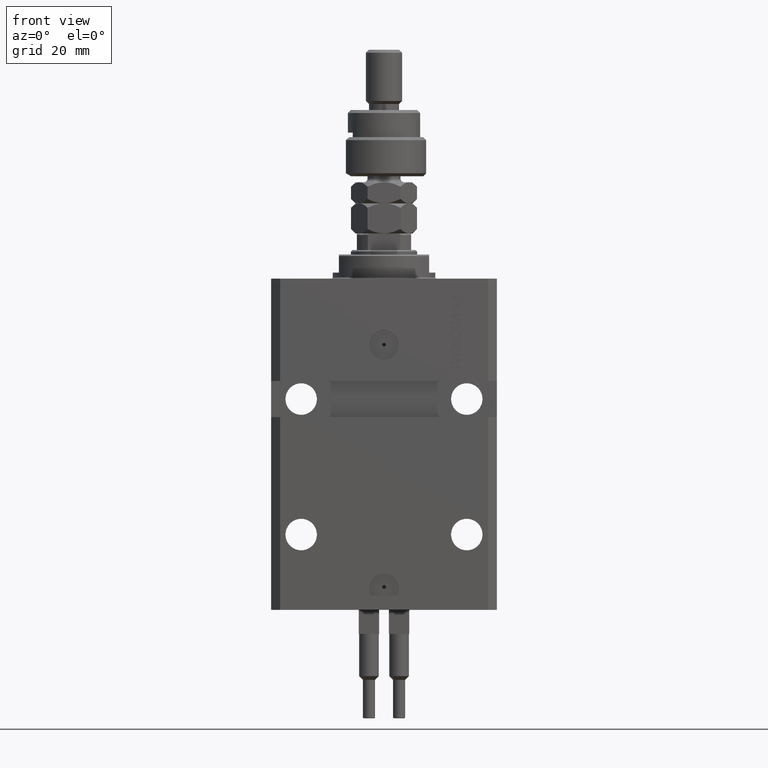
[diagram: clean part render]
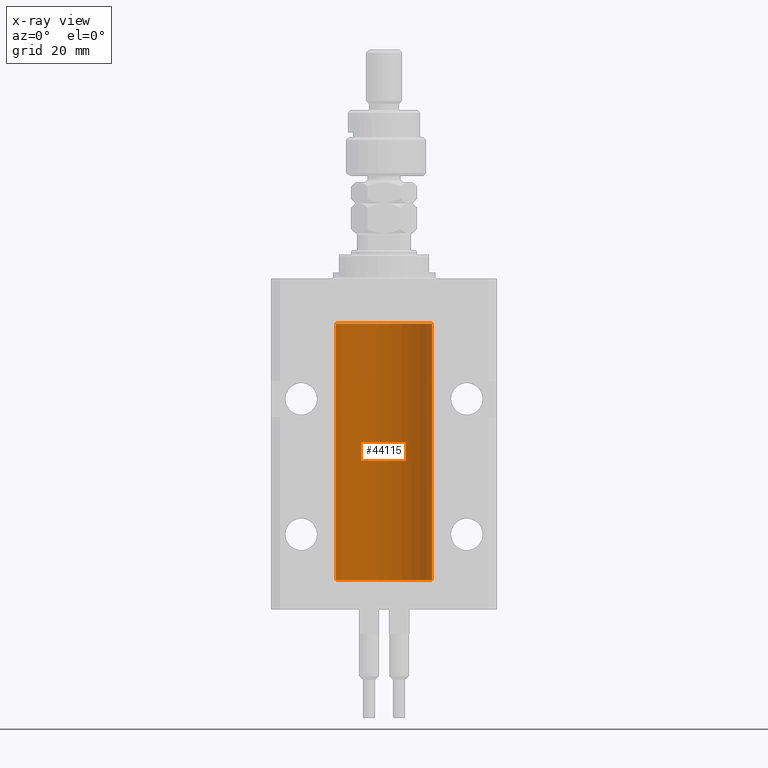
[diagram: x-ray — body ghosted, one internal face saturated and labeled with its STEP entity id]
A machine part, front view, then the same camera in x-ray: the body is ghosted and one INTERNAL B-rep face — a face not visible from any outside direction — is saturated and labeled: STEP entity #44115.
In plain terms, the highlighted cylindrical surface (partial cylindrical patch) has radius 16 mm, axis along (0, 0, 1).
Its self-contained STEP definition (entity closure, byte-faithful):
#81 = B_SPLINE_CURVE_WITH_KNOTS ( 'NONE', 3,
 ( #37115, #1775, #48970, #45117, #30930, #50250, #22911, #26788, #42533, #39151, #31423, #3820, #27543, #35296 ),
 .UNSPECIFIED., .F., .F.,
 ( 4, 2, 2, 2, 2, 2, 4 ),
 ( 1.597328219370744179E-19, 0.0002442776652680942405, 0.0004885553305361882643, 0.0009771106610723839011, 0.001221388326340481665, 0.001465665991608579430, 0.001954221322144767369 ),
 .UNSPECIFIED. ) ;
#579 = CARTESIAN_POINT ( 'NONE',  ( -15.99548640841682712, 0.3843705577988784650, -97.50046628527007897 ) ) ;
#826 = CARTESIAN_POINT ( 'NONE',  ( -15.99707730059171240, 0.3150375992092294686, -97.45402333202572720 ) ) ;
#886 = CARTESIAN_POINT ( 'NONE',  ( -16.00000000000000000, 1.959434878635765131E-15, -15.00000000000000000 ) ) ;
#1055 = CARTESIAN_POINT ( 'NONE',  ( 16.00000000000000000, 0.000000000000000000, -100.0999999999999943 ) ) ;
#1112 = VERTEX_POINT ( 'NONE', #43770 ) ;
#1196 = EDGE_CURVE ( 'NONE', #3980, #25143, #28558, .T. ) ;
#1648 = DIRECTION ( 'NONE',  ( 0.000000000000000000, 0.000000000000000000, 1.000000000000000000 ) ) ;
#1775 = CARTESIAN_POINT ( 'NONE',  ( -16.00000000000000711, 0.08259886010189904093, -21.37500000000000000 ) ) ;
#3820 = CARTESIAN_POINT ( 'NONE',  ( -15.99711699979842017, 0.3253759916140657737, -22.55856151623175521 ) ) ;
#3980 = VERTEX_POINT ( 'NONE', #6659 ) ;
#5167 = DIRECTION ( 'NONE',  ( 1.000000000000000000, 0.000000000000000000, 0.000000000000000000 ) ) ;
#5452 = LINE ( 'NONE', #29189, #42501 ) ;
#6206 = DIRECTION ( 'NONE',  ( -0.000000000000000000, -0.000000000000000000, 1.000000000000000000 ) ) ;
#6388 = VECTOR ( 'NONE', #12994, 1000.000000000000000 ) ;
#6659 = CARTESIAN_POINT ( 'NONE',  ( -16.00000000000000000, -1.303459030566954747E-14, -97.37500000000000000 ) ) ;
#8052 = EDGE_CURVE ( 'NONE', #1112, #18874, #37614, .T. ) ;
#8299 = CARTESIAN_POINT ( 'NONE',  ( -15.98779057735153941, 0.6249419637998017141, -97.83670145863504786 ) ) ;
#8808 = CARTESIAN_POINT ( 'NONE',  ( -15.98778717651346604, 0.6250289588122097673, -98.08131585687051768 ) ) ;
#10334 = LINE ( 'NONE', #49528, #15226 ) ;
#11420 = VERTEX_POINT ( 'NONE', #1055 ) ;
#12181 = CARTESIAN_POINT ( 'NONE',  ( -15.98844267028590949, 0.6088369347963275002, -98.16324735024325321 ) ) ;
#12921 = CARTESIAN_POINT ( 'NONE',  ( 0.000000000000000000, 0.000000000000000000, -100.0999999999999943 ) ) ;
#12994 = DIRECTION ( 'NONE',  ( -0.000000000000000000, -0.000000000000000000, 1.000000000000000000 ) ) ;
#14843 = CARTESIAN_POINT ( 'NONE',  ( -16.00000000000000000, 1.643679961284177128E-16, -21.37499999999999645 ) ) ;
#15226 = VECTOR ( 'NONE', #6206, 1000.000000000000000 ) ;
#15390 = AXIS2_PLACEMENT_3D ( 'NONE', #28005, #20760, #36503 ) ;
#15743 = B_SPLINE_CURVE_WITH_KNOTS ( 'NONE', 3,
 ( #24281, #35914, #16810, #826, #579, #32565, #8299, #8808, #12181, #47756, #43153, #36158, #20670, #24545 ),
 .UNSPECIFIED., .F., .F.,
 ( 4, 2, 2, 2, 2, 2, 4 ),
 ( 1.003919637555167698E-18, 0.0002442776652680894158, 0.0004885553305361776391, 0.0009771106610723541940, 0.001221388326340463017, 0.001465665991608572274, 0.001954221322144760863 ),
 .UNSPECIFIED. ) ;
#15989 = EDGE_CURVE ( 'NONE', #3980, #24430, #15743, .T. ) ;
#16265 = CYLINDRICAL_SURFACE ( 'NONE', #50375, 16.00000000000000000 ) ;
#16810 = CARTESIAN_POINT ( 'NONE',  ( -15.99934216141748244, 0.1636497843296308152, -97.39126528029306940 ) ) ;
#17383 = DIRECTION ( 'NONE',  ( 1.000000000000000000, 0.000000000000000000, 0.000000000000000000 ) ) ;
#18015 = EDGE_CURVE ( 'NONE', #11420, #19257, #42102, .T. ) ;
#18411 = ORIENTED_EDGE ( 'NONE', *, *, #37356, .F. ) ;
#18701 = ORIENTED_EDGE ( 'NONE', *, *, #50937, .T. ) ;
#18874 = VERTEX_POINT ( 'NONE', #886 ) ;
#18924 = CARTESIAN_POINT ( 'NONE',  ( -16.00000000000013145, 3.685127038166941002E-13, -22.62500000000341771 ) ) ;
#19257 = VERTEX_POINT ( 'NONE', #24801 ) ;
#20670 = CARTESIAN_POINT ( 'NONE',  ( -15.99999999999998934, 0.1631714642025804407, -98.62499999999987210 ) ) ;
#20760 = DIRECTION ( 'NONE',  ( 0.000000000000000000, 0.000000000000000000, 1.000000000000000000 ) ) ;
#20917 = DIRECTION ( 'NONE',  ( -0.000000000000000000, -0.000000000000000000, 1.000000000000000000 ) ) ;
#21248 = CARTESIAN_POINT ( 'NONE',  ( 0.000000000000000000, 0.000000000000000000, -100.0999999999999943 ) ) ;
#22619 = ORIENTED_EDGE ( 'NONE', *, *, #18015, .F. ) ;
#22911 = CARTESIAN_POINT ( 'NONE',  ( -15.98779057735153941, 0.6249419637998100407, -21.83670145863507273 ) ) ;
#24281 = CARTESIAN_POINT ( 'NONE',  ( -16.00000000000000000, -1.303459030566954747E-14, -97.37500000000000000 ) ) ;
#24430 = VERTEX_POINT ( 'NONE', #48662 ) ;
#24545 = CARTESIAN_POINT ( 'NONE',  ( -16.00000000000013145, 3.685127046438747128E-13, -98.62500000000343903 ) ) ;
#24801 = CARTESIAN_POINT ( 'NONE',  ( -16.00000000000000000, 1.959434878635765131E-15, -100.0999999999999943 ) ) ;
#25034 = DIRECTION ( 'NONE',  ( -0.000000000000000000, -0.000000000000000000, 1.000000000000000000 ) ) ;
#25143 = VERTEX_POINT ( 'NONE', #18924 ) ;
#25452 = DIRECTION ( 'NONE',  ( -0.000000000000000000, -0.000000000000000000, 1.000000000000000000 ) ) ;
#26788 = CARTESIAN_POINT ( 'NONE',  ( -15.98778717651346071, 0.6250289588122140971, -22.08131585687052478 ) ) ;
#27543 = CARTESIAN_POINT ( 'NONE',  ( -16.00000000000000000, 0.1631714642025800244, -22.62499999999985789 ) ) ;
#28005 = CARTESIAN_POINT ( 'NONE',  ( 0.000000000000000000, 0.000000000000000000, -15.00000000000000000 ) ) ;
#28558 = LINE ( 'NONE', #45308, #50651 ) ;
#29189 = CARTESIAN_POINT ( 'NONE',  ( -16.00000000000000000, 1.959434878635765131E-15, -100.0999999999999943 ) ) ;
#30686 = EDGE_CURVE ( 'NONE', #45719, #25143, #81, .T. ) ;
#30930 = CARTESIAN_POINT ( 'NONE',  ( -15.99548640841683067, 0.3843705577988847377, -21.50046628527008608 ) ) ;
#31423 = CARTESIAN_POINT ( 'NONE',  ( -15.99228023727724413, 0.5003781296993413674, -22.38347829554236057 ) ) ;
#32565 = CARTESIAN_POINT ( 'NONE',  ( -15.99070653155267685, 0.5573233280232928744, -97.67348148680505915 ) ) ;
#35296 = CARTESIAN_POINT ( 'NONE',  ( -16.00000000000013145, 3.685127038166941002E-13, -22.62500000000341771 ) ) ;
#35914 = CARTESIAN_POINT ( 'NONE',  ( -16.00000000000000711, 0.08259886010188650929, -97.37500000000000000 ) ) ;
#36158 = CARTESIAN_POINT ( 'NONE',  ( -15.99711699979841661, 0.3253759916140614439, -98.55856151623174810 ) ) ;
#36503 = DIRECTION ( 'NONE',  ( 1.000000000000000000, 0.000000000000000000, 0.000000000000000000 ) ) ;
#36819 = ORIENTED_EDGE ( 'NONE', *, *, #8052, .T. ) ;
#37115 = CARTESIAN_POINT ( 'NONE',  ( -16.00000000000000000, 1.643679961284177128E-16, -21.37499999999999645 ) ) ;
#37356 = EDGE_CURVE ( 'NONE', #19257, #24430, #5452, .T. ) ;
#37614 = CIRCLE ( 'NONE', #15390, 16.00000000000000000 ) ;
#38429 = ORIENTED_EDGE ( 'NONE', *, *, #42089, .F. ) ;
#39151 = CARTESIAN_POINT ( 'NONE',  ( -15.99070426498503217, 0.5462220647145618058, -22.31460064614143590 ) ) ;
#40305 = ORIENTED_EDGE ( 'NONE', *, *, #1196, .F. ) ;
#42089 = EDGE_CURVE ( 'NONE', #45719, #18874, #44979, .T. ) ;
#42102 = CIRCLE ( 'NONE', #43702, 16.00000000000000000 ) ;
#42501 = VECTOR ( 'NONE', #20917, 1000.000000000000000 ) ;
#42533 = CARTESIAN_POINT ( 'NONE',  ( -15.98844267028591482, 0.6088369347963316081, -22.16324735024328518 ) ) ;
#43153 = CARTESIAN_POINT ( 'NONE',  ( -15.99228023727724057, 0.5003781296993360383, -98.38347829554236057 ) ) ;
#43702 = AXIS2_PLACEMENT_3D ( 'NONE', #21248, #1648, #17383 ) ;
#43770 = CARTESIAN_POINT ( 'NONE',  ( 16.00000000000000000, 0.000000000000000000, -15.00000000000000000 ) ) ;
#44115 = ADVANCED_FACE ( 'NONE', ( #48236 ), #16265, .F. ) ;
#44979 = LINE ( 'NONE', #48318, #6388 ) ;
#45117 = CARTESIAN_POINT ( 'NONE',  ( -15.99707730059171240, 0.3150375992092407373, -21.45402333202571654 ) ) ;
#45308 = CARTESIAN_POINT ( 'NONE',  ( -16.00000000000000000, 1.959434878635765131E-15, -100.0999999999999943 ) ) ;
#45719 = VERTEX_POINT ( 'NONE', #14843 ) ;
#46538 = ORIENTED_EDGE ( 'NONE', *, *, #15989, .T. ) ;
#47756 = CARTESIAN_POINT ( 'NONE',  ( -15.99070426498503572, 0.5462220647145610286, -98.31460064614144301 ) ) ;
#47859 = ORIENTED_EDGE ( 'NONE', *, *, #30686, .T. ) ;
#48236 = FACE_OUTER_BOUND ( 'NONE', #49765, .T. ) ;
#48318 = CARTESIAN_POINT ( 'NONE',  ( -16.00000000000000000, 1.959434878635765131E-15, -100.0999999999999943 ) ) ;
#48662 = CARTESIAN_POINT ( 'NONE',  ( -16.00000000000013145, 3.685127046438747128E-13, -98.62500000000343903 ) ) ;
#48970 = CARTESIAN_POINT ( 'NONE',  ( -15.99934216141748244, 0.1636497843296417787, -21.39126528029306229 ) ) ;
#49528 = CARTESIAN_POINT ( 'NONE',  ( 16.00000000000000000, 0.000000000000000000, -100.0999999999999943 ) ) ;
#49765 = EDGE_LOOP ( 'NONE', ( #18411, #22619, #18701, #36819, #38429, #47859, #40305, #46538 ) ) ;
#50250 = CARTESIAN_POINT ( 'NONE',  ( -15.99070653155267685, 0.5573233280232986475, -21.67348148680506625 ) ) ;
#50375 = AXIS2_PLACEMENT_3D ( 'NONE', #12921, #25034, #5167 ) ;
#50651 = VECTOR ( 'NONE', #25452, 1000.000000000000000 ) ;
#50937 = EDGE_CURVE ( 'NONE', #11420, #1112, #10334, .T. ) ;